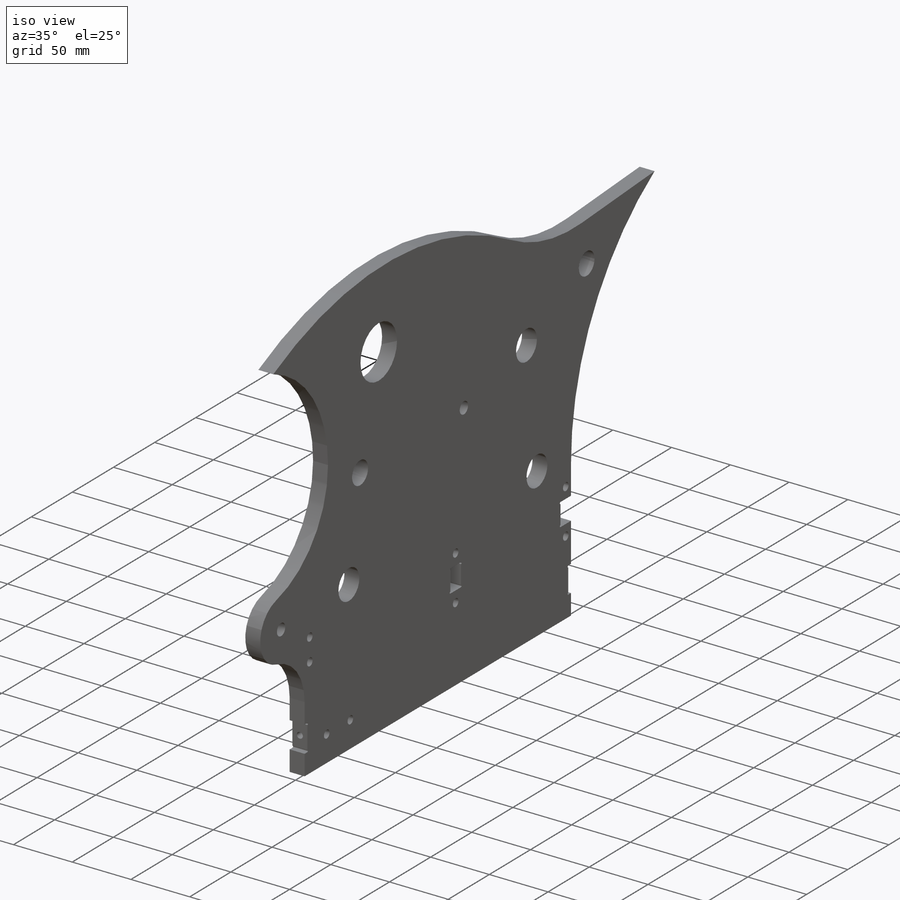
[diagram: iso view]
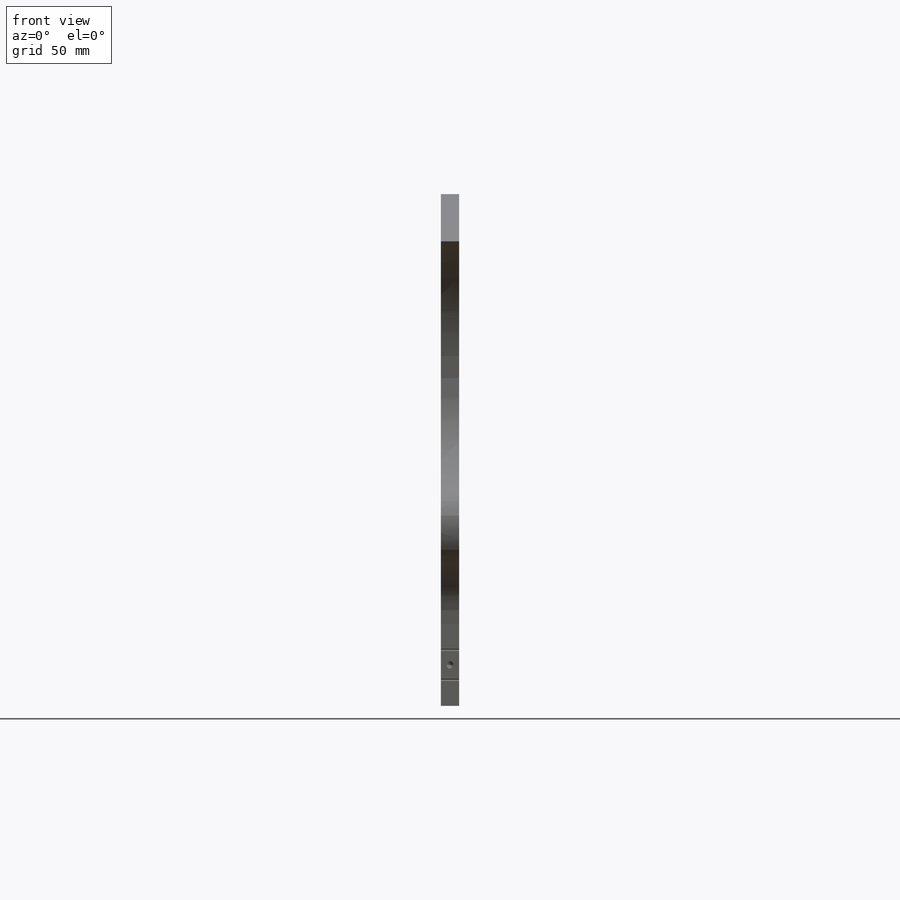
[diagram: front view]
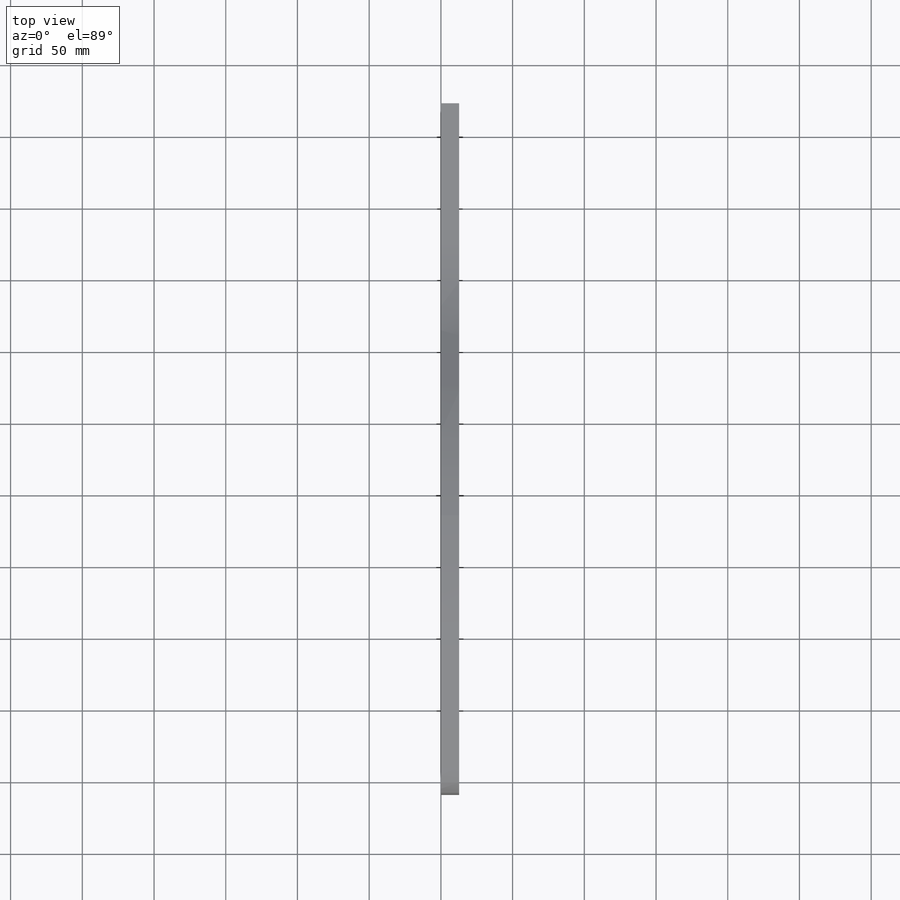
[diagram: top view]
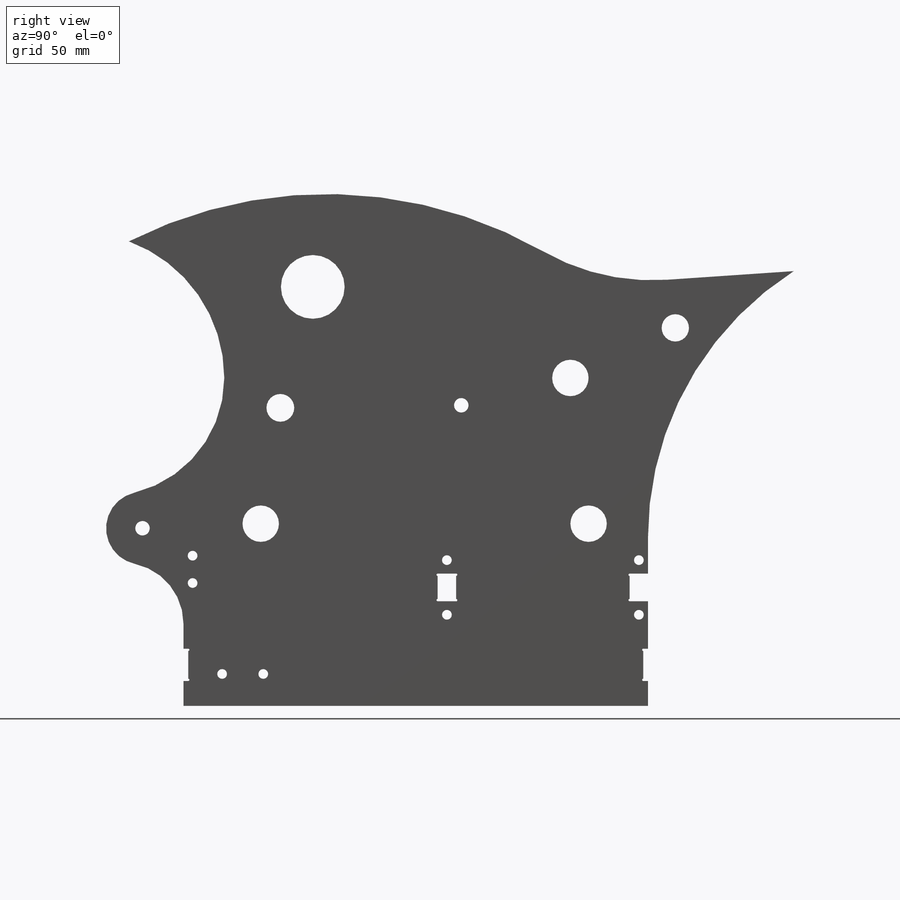
[diagram: right view]
SOLIDWORKS PART (.sldprt)
format: sldprt  version: not decoded by parser v0  size: 849,408 bytes
history: native  units: mm
features: sketch x29, cut_extrude x10, extrude x9, hole x5, fillet x2, material x1 (+13 scaffold rows collapsed)
feature tree (69):
  scaffold x13  (default folders/planes/origin — collapsed)
  material  "6061-T6 (SS)"
  sketch  "Sketch1"  dims[c1.D1=~9.285877mm c1.D3=~12.882042mm c1.D4=15.875mm c1.D5=101.6mm c1.D9=50.8mm c1.D10=67.31mm c1.D11=79.502mm c1.D12=46.736mm c2.D1=38.1mm c2.D2=50.8mm c2.D3=71.755mm c2.D6=254.0mm c2.D7=38.1mm c2.D8=38.1mm c3.D1=558.8mm c3.D2=88.9mm]
  extrude  "Boss-Extrude1"  Depth=12.7mm
  sketch  "Sketch2"  dims[c1.D1=25.4mm c1.D2=63.5mm c1.D3=127.0mm c1.D4=127.0mm c1.D5=76.2mm c1.D6=254.0mm c1.D7=196.85mm c2.D5=~79.056862mm c3.D5=45.0deg c4.D5=~58.544107mm c5.D5=45.0deg c6.D5=228.6mm]
  extrude  "Boss-Extrude2"  Depth=12.7mm
  sketch  "Sketch3"  dims[c1.D1=~58.544107mm c2.D1=45.0deg]
  extrude  "Boss-Extrude3"  Depth=12.7mm
  sketch  "Sketch4"
  cut_extrude  "Cut-Extrude1"  [1 undecoded]
  sketch  "Sketch5"  dims[c1.D1=50.8mm c1.D2=~117.554935mm c2.D1=323.85mm]
  cut_extrude  "Cut-Extrude2"  [1 undecoded]
  sketch  "Sketch6"  dims[c1.D1=~21.135133mm c1.D3=44.45mm c1.D4=101.6mm c2.D1=101.6mm c2.D2=25.4mm]
  extrude  "Boss-Extrude4"  Depth=12.7mm
  fillet  "Fillet1"  Radius=25.4mm
  sketch  "Sketch7"  dims[c1.D1=~50.110256mm c1.D2=~26.373819mm c2.D1=117.475mm c2.D2=63.5mm c2.D3=111.125mm c2.D4=25.4mm c3.D1=31.75mm]
  cut_extrude  "Cut-Extrude3"  [1 undecoded]
  sketch  "Sketch8"  dims[D1=~296.126492mm]
  extrude  "Boss-Extrude5"  Depth=12.7mm
  sketch  "Sketch9"  dims[c1.D1=~12.812817mm c1.D2=25.4mm c2.D1=~43.585763mm c2.D2=25.4mm c2.D3=44.45mm c3.D1=228.6mm c3.D3=190.5mm c4.D1=228.6mm c4.D3=~54.111447mm]
  cut_extrude  "Cut-Extrude4"  [1 undecoded]
  sketch  "Sketch10"  dims[c1.D1=~122.34935mm c1.D2=19.05mm c2.D1=101.6mm c2.D2=~107.817728mm c2.D3=263.525mm c2.D4=19.05mm]
  extrude  "Boss-Extrude6"  Depth=12.7mm
  sketch  "Sketch11"  dims[c1.D1=27.305mm c1.D4=~197.800822mm c1.D7=304.8mm c1.D2=320.675mm c1.D3=193.675mm c2.D4=323.85mm c2.D5=361.95mm c2.D6=38.1mm c2.D7=~210.448797mm]
  extrude  "Boss-Extrude7"  Depth=12.7mm
  fillet  "Fillet2"  Radius=152.4mm
  sketch  "Sketch12"  dims[c1.D1=~12.588202mm c1.D2=~33.126848mm c2.D1=15.875mm c2.D2=3.175mm c3.D1=~37.35269mm c3.D2=~138.899561mm c4.D1=15.875mm c4.D2=3.175mm c5.D1=0.127mm]
  cut_extrude  "Cut-Extrude5"  [1 undecoded]
  sketch  "Sketch13"  dims[D1=1.5875mm]
  cut_extrude  "Cut-Extrude6"  [1 undecoded]
  hole  "1/4-20 Tapped Hole1"  Diameter=5.1054mm Depth=16.51mm
  sketch  "Sketch15"
  sketch  "Sketch14"  dims[hole-wizard template sketch: 50 standard entries collapsed; hole parameters above]
  hole  "1/4-20 Tapped Hole2"  Diameter=5.1054mm Depth=16.51mm
  sketch  "Sketch17"
  sketch  "Sketch16"  dims[hole-wizard template sketch: 50 standard entries collapsed; hole parameters above]
  sketch  "Sketch18"  dims[c1.D1=~123.653163mm c1.D2=50.8mm c1.D6=50.8mm c2.D1=57.15mm c2.D3=28.575mm c2.D4=123.825mm c2.D6=107.95mm c2.D5=0.0mm]
  extrude  "Boss-Extrude8"  [1 undecoded]
  hole  "3/8 Clearance Hole1"  Diameter=10.0838mm Depth=12.7mm
  sketch  "Sketch20"  dims[D1=209.55mm D2=193.675mm]
  sketch  "Sketch19"  dims[hole-wizard template sketch: 50 standard entries collapsed; hole parameters above]
  hole  "1/4 Clearance Hole1"  Diameter=6.7564mm Depth=12.7mm
  sketch  "Sketch22"
  sketch  "Sketch21"  dims[hole-wizard template sketch: 50 standard entries collapsed; hole parameters above]
  sketch  "Sketch23"  dims[c1.D1=~19.032876mm c1.D2=12.7mm c2.D1=19.05mm c2.D2=12.7mm c3.D1=0.127mm]
  cut_extrude  "Cut-Extrude7"  [1 undecoded]
  sketch  "Sketch24"  dims[D1=1.5875mm]
  cut_extrude  "Cut-Extrude8"  [1 undecoded]
  hole  "1/4 Clearance Hole2"  Diameter=6.7564mm Depth=12.7mm
  sketch  "Sketch26"
  sketch  "Sketch25"  dims[hole-wizard template sketch: 61 standard entries collapsed; hole parameters above]
  sketch  "Sketch27"  dims[D1=44.45mm]
  extrude  "Boss-Extrude9"  [1 undecoded]
  sketch  "Sketch28"  dims[D1=44.45mm D2=190.5mm D3=292.1mm]
  cut_extrude  "Cut-Extrude9"  [1 undecoded]
  sketch  "Sketch29"  dims[D1=19.3675mm D2=~207.762601mm D3=~67.535293mm]
  cut_extrude  "Cut-Extrude10"  [1 undecoded]
decode coverage: 38 of 55 modeling features carry decoded parameters
note: ~ marks probable driven/reference dimensions
note: 12 parameter values undecoded
summary: no parameter record found for 12 features; Diameter pulled from absorbed wizard sketch
note: suppression state not decoded; provenance and decode notes live in map.json
